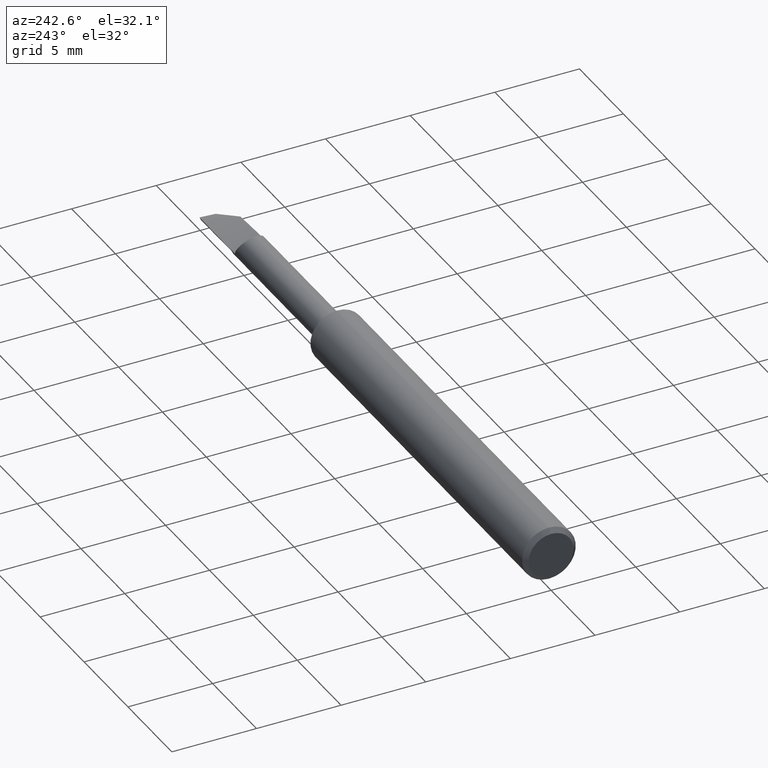
[diagram: clean part render]
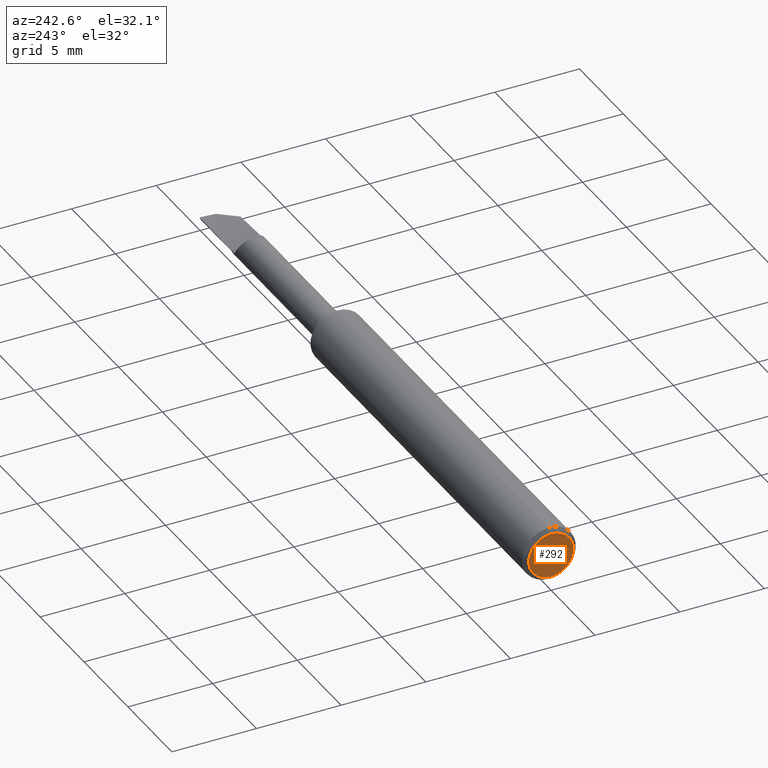
[diagram: same view with one face highlighted and labeled with its STEP entity id]
A machine part, auxiliary view. The second image highlights one B-rep face of the part: STEP entity #292.
In plain terms, the highlighted planar face has unit normal (1, 0, 0).
Its self-contained STEP definition (entity closure, byte-faithful):
#43 = EDGE_LOOP ( 'NONE', ( #565, #443 ) ) ;
#46 = VERTEX_POINT ( 'NONE', #586 ) ;
#55 = DIRECTION ( 'NONE',  ( 0.000000000000000000, 0.000000000000000000, -1.000000000000000000 ) ) ;
#62 = AXIS2_PLACEMENT_3D ( 'NONE', #385, #112, #55 ) ;
#73 = CARTESIAN_POINT ( 'NONE',  ( 0.000000000000000000, 7.023349393110068342E-18, 0.05234999999999996600 ) ) ;
#105 = FACE_OUTER_BOUND ( 'NONE', #43, .T. ) ;
#112 = DIRECTION ( 'NONE',  ( 1.000000000000000000, 0.000000000000000000, 0.000000000000000000 ) ) ;
#150 = CARTESIAN_POINT ( 'NONE',  ( 0.000000000000000000, 0.000000000000000000, 0.000000000000000000 ) ) ;
#158 = AXIS2_PLACEMENT_3D ( 'NONE', #315, #250, #257 ) ;
#165 = PLANE ( 'NONE',  #62 ) ;
#176 = EDGE_CURVE ( 'NONE', #46, #431, #567, .T. ) ;
#250 = DIRECTION ( 'NONE',  ( -1.000000000000000000, -0.000000000000000000, -0.000000000000000000 ) ) ;
#257 = DIRECTION ( 'NONE',  ( 0.000000000000000000, 0.000000000000000000, 1.000000000000000000 ) ) ;
#292 = ADVANCED_FACE ( 'NONE', ( #105 ), #165, .F. ) ;
#315 = CARTESIAN_POINT ( 'NONE',  ( 0.000000000000000000, 0.000000000000000000, 0.000000000000000000 ) ) ;
#328 = AXIS2_PLACEMENT_3D ( 'NONE', #150, #495, #485 ) ;
#385 = CARTESIAN_POINT ( 'NONE',  ( 0.000000000000000000, 0.000000000000000000, 0.000000000000000000 ) ) ;
#431 = VERTEX_POINT ( 'NONE', #73 ) ;
#443 = ORIENTED_EDGE ( 'NONE', *, *, #542, .T. ) ;
#485 = DIRECTION ( 'NONE',  ( 0.000000000000000000, 0.000000000000000000, 1.000000000000000000 ) ) ;
#487 = CIRCLE ( 'NONE', #158, 0.05234999999999996600 ) ;
#495 = DIRECTION ( 'NONE',  ( -1.000000000000000000, -0.000000000000000000, -0.000000000000000000 ) ) ;
#542 = EDGE_CURVE ( 'NONE', #431, #46, #487, .T. ) ;
#565 = ORIENTED_EDGE ( 'NONE', *, *, #176, .T. ) ;
#567 = CIRCLE ( 'NONE', #328, 0.05234999999999996600 ) ;
#586 = CARTESIAN_POINT ( 'NONE',  ( 0.000000000000000000, 0.000000000000000000, -0.05234999999999996600 ) ) ;